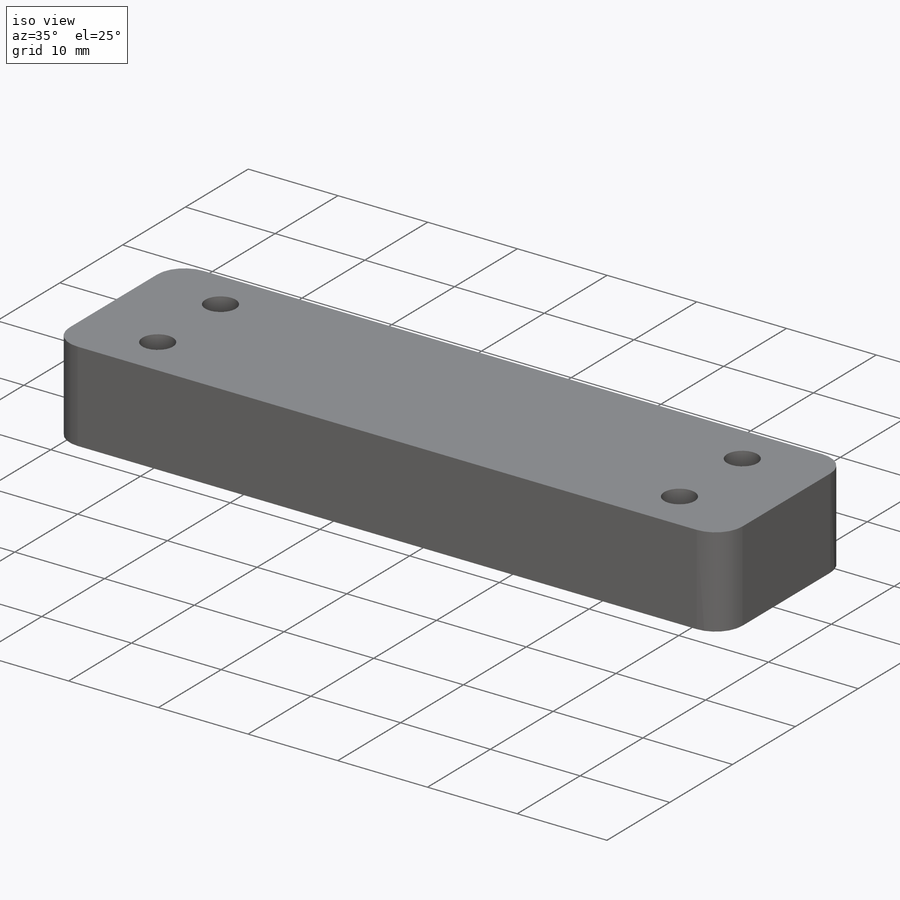
[diagram: iso view]
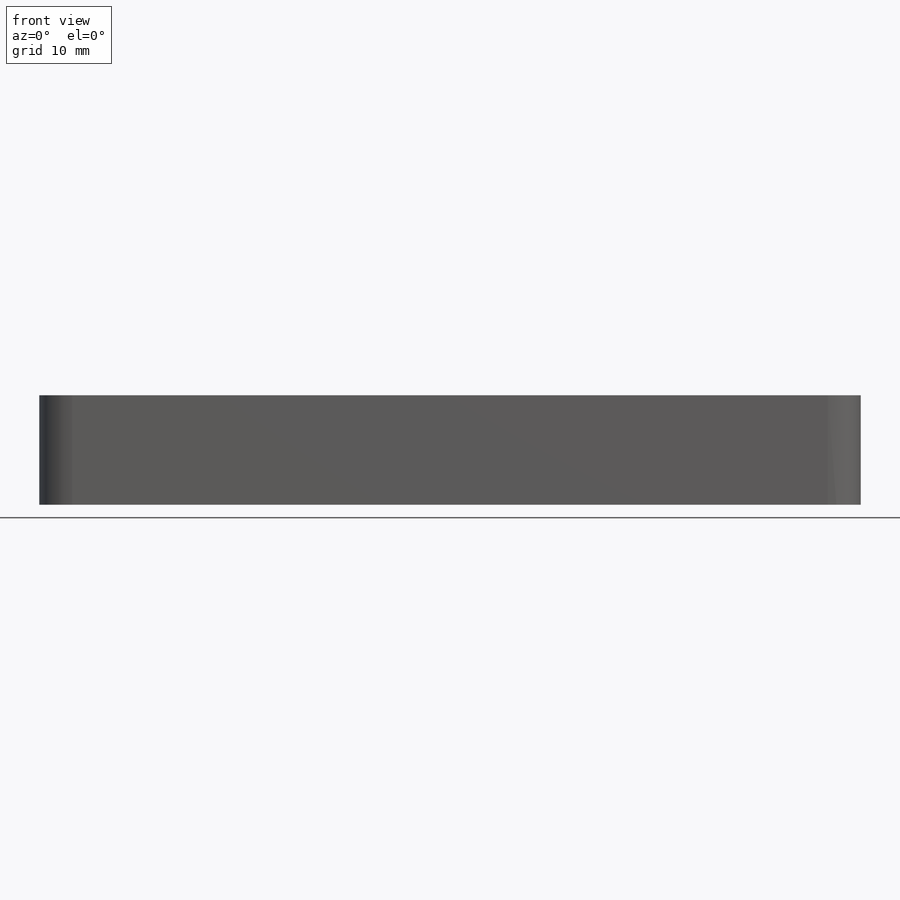
[diagram: front view]
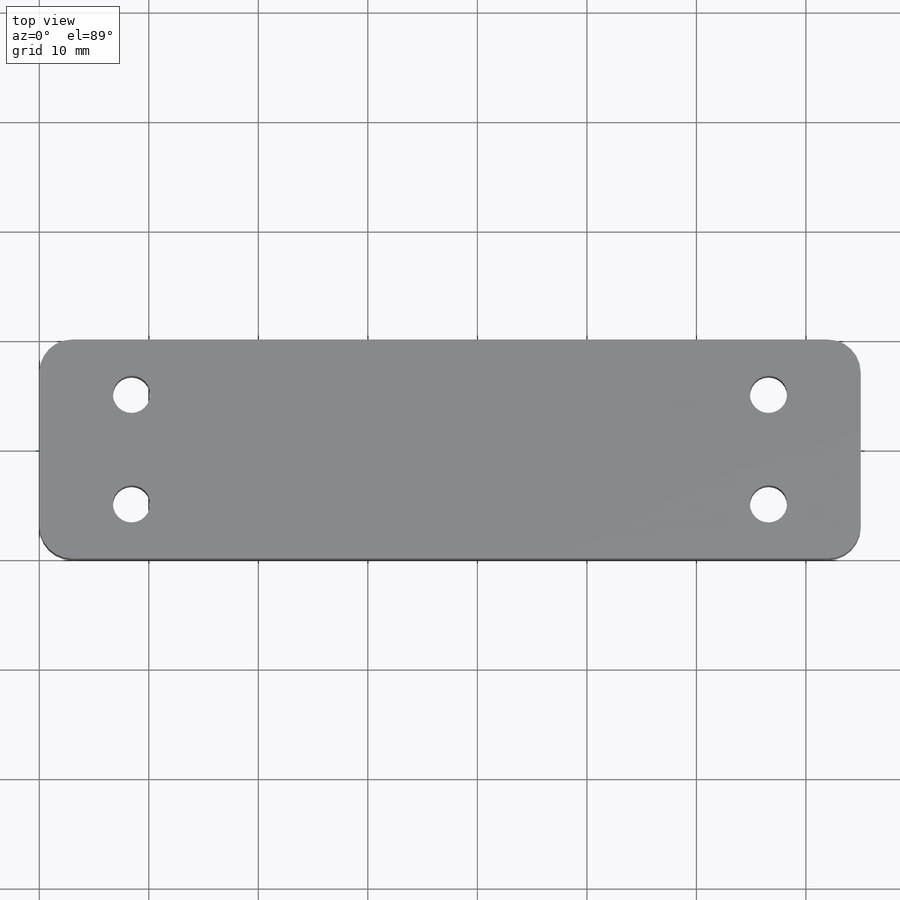
[diagram: top view]
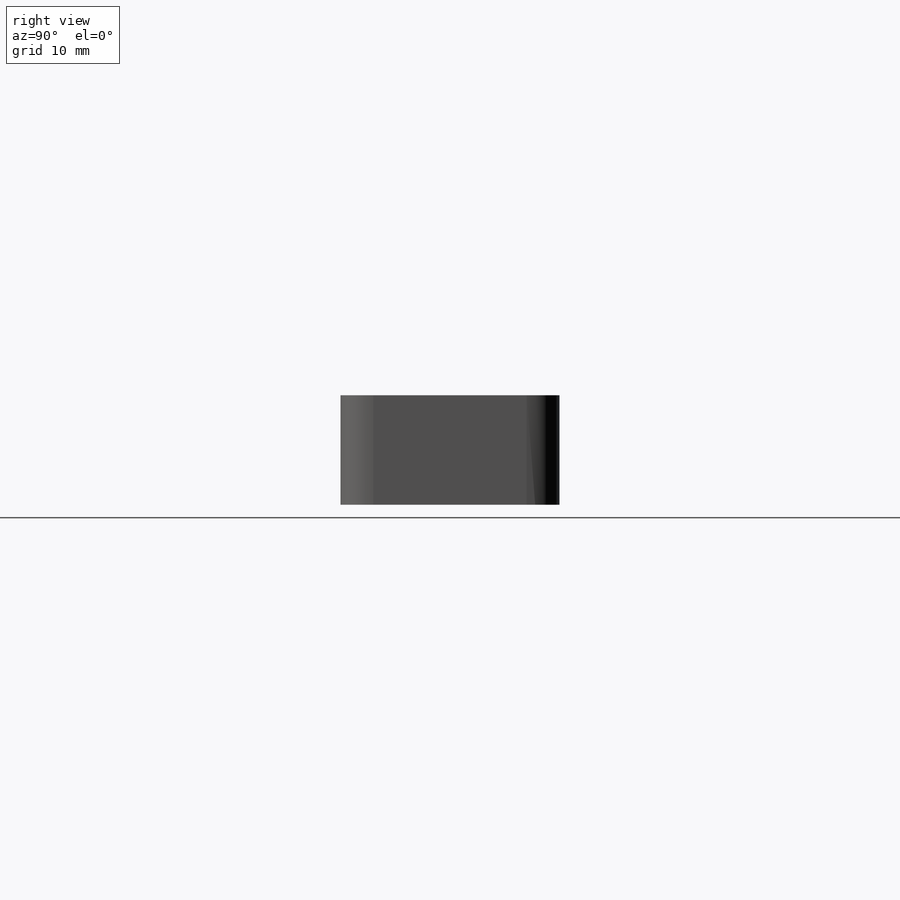
[diagram: right view]
SOLIDWORKS PART (.sldprt)
format: sldprt  version: not decoded by parser v0  size: 145,920 bytes
history: native  units: mm
features: sketch x3, material x1, extrude x1, fillet x1, hole x1 (+12 scaffold rows collapsed)
feature tree (19):
  scaffold x12  (default folders/planes/origin — collapsed)
  material  "Material <not specified>"
  sketch  "Sketch1"  dims[c1.D1=~36.35806mm c1.D2=~77.789337mm c2.D1=75.0mm c2.D2=20.0mm]
  extrude  "Boss-Extrude1"  Depth=10mm
  fillet  "Fillet1"  Radius=3mm
  hole  "M3 Clearance Hole1"  Diameter=3.4mm Depth=10mm
  sketch  "Sketch2"
  sketch  "Sketch3"  dims[Thru Hole Dia.=3.4mm Thru Hole Depth=10.0mm]
decode coverage: 5 of 6 modeling features carry decoded parameters
note: ~ marks probable driven/reference dimensions
note: suppression state not decoded; provenance and decode notes live in map.json
